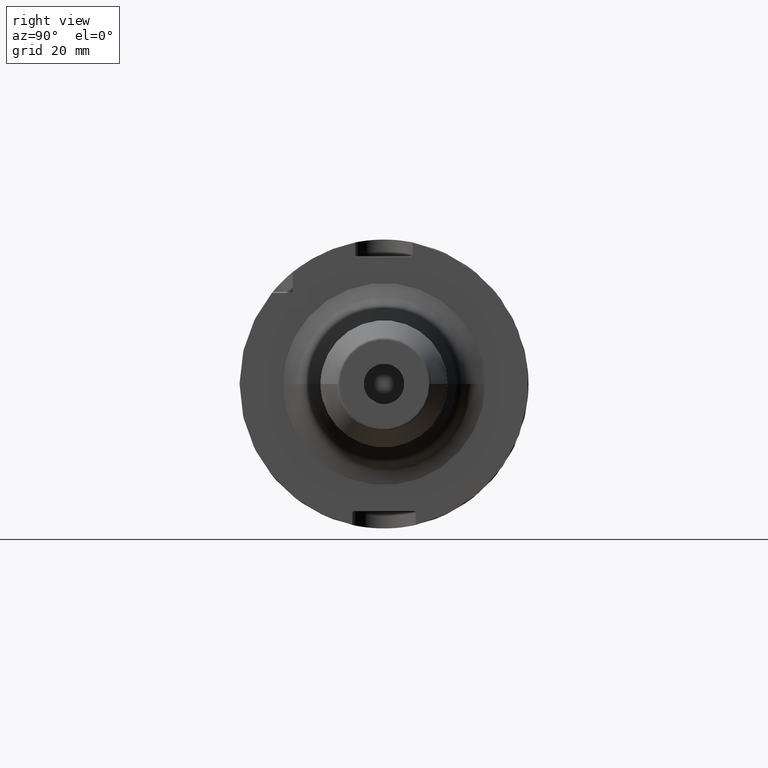
[diagram: clean part render]
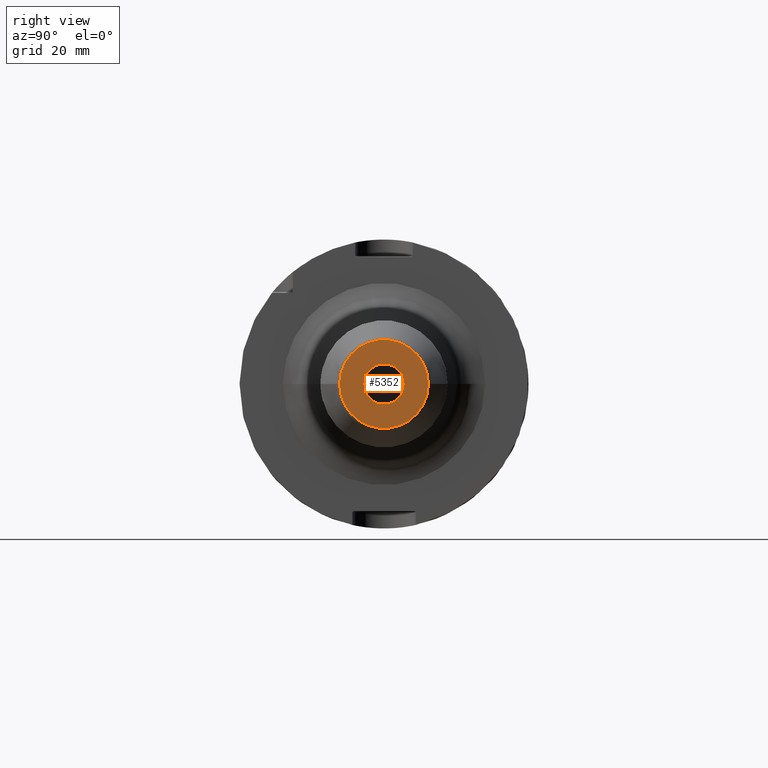
[diagram: same view with one face highlighted and labeled with its STEP entity id]
A machine part, right view. The second image highlights one B-rep face of the part: STEP entity #5352.
In plain terms, the highlighted planar face has unit normal (1, 0, 0).
Its self-contained STEP definition (entity closure, byte-faithful):
#1980=CARTESIAN_POINT('',(1.6E2,0.E0,0.E0));
#1981=DIRECTION('',(-1.E0,0.E0,0.E0));
#1982=DIRECTION('',(0.E0,1.E0,0.E0));
#1983=AXIS2_PLACEMENT_3D('',#1980,#1981,#1982);
#1985=CARTESIAN_POINT('',(1.6E2,0.E0,0.E0));
#1986=DIRECTION('',(-1.E0,0.E0,0.E0));
#1987=DIRECTION('',(0.E0,-1.E0,0.E0));
#1988=AXIS2_PLACEMENT_3D('',#1985,#1986,#1987);
#1990=CARTESIAN_POINT('',(1.6E2,0.E0,0.E0));
#1991=DIRECTION('',(1.E0,0.E0,0.E0));
#1992=DIRECTION('',(0.E0,1.E0,0.E0));
#1993=AXIS2_PLACEMENT_3D('',#1990,#1991,#1992);
#1995=CARTESIAN_POINT('',(1.6E2,0.E0,0.E0));
#1996=DIRECTION('',(1.E0,0.E0,0.E0));
#1997=DIRECTION('',(0.E0,-1.E0,0.E0));
#1998=AXIS2_PLACEMENT_3D('',#1995,#1996,#1997);
#3309=CARTESIAN_POINT('',(1.6E2,7.E0,0.E0));
#3310=VERTEX_POINT('',#3309);
#3323=CARTESIAN_POINT('',(1.6E2,1.536292973919E1,-1.736081374612E-14));
#3324=CARTESIAN_POINT('',(1.6E2,-1.536292973919E1,-3.910069315782E-14));
#3325=VERTEX_POINT('',#3323);
#3326=VERTEX_POINT('',#3324);
#3327=CARTESIAN_POINT('',(1.6E2,-7.E0,0.E0));
#3328=VERTEX_POINT('',#3327);
#5337=CARTESIAN_POINT('',(1.6E2,0.E0,0.E0));
#5338=DIRECTION('',(1.E0,0.E0,0.E0));
#5339=DIRECTION('',(0.E0,-1.E0,0.E0));
#5340=AXIS2_PLACEMENT_3D('',#5337,#5338,#5339);
#5341=PLANE('',#5340);
#5342=ORIENTED_EDGE('',*,*,#5331,.T.);
#5343=ORIENTED_EDGE('',*,*,#5317,.T.);
#5344=EDGE_LOOP('',(#5342,#5343));
#5345=FACE_OUTER_BOUND('',#5344,.F.);
#5347=ORIENTED_EDGE('',*,*,#5346,.T.);
#5349=ORIENTED_EDGE('',*,*,#5348,.T.);
#5350=EDGE_LOOP('',(#5347,#5349));
#5351=FACE_BOUND('',#5350,.F.);
#5352=ADVANCED_FACE('',(#5345,#5351),#5341,.T.);
#1984=CIRCLE('',#1983,1.536292973919E1);
#1989=CIRCLE('',#1988,1.536292973919E1);
#1994=CIRCLE('',#1993,7.E0);
#1999=CIRCLE('',#1998,7.E0);
#5317=EDGE_CURVE('',#3326,#3325,#1989,.T.);
#5331=EDGE_CURVE('',#3325,#3326,#1984,.T.);
#5346=EDGE_CURVE('',#3310,#3328,#1994,.T.);
#5348=EDGE_CURVE('',#3328,#3310,#1999,.T.);